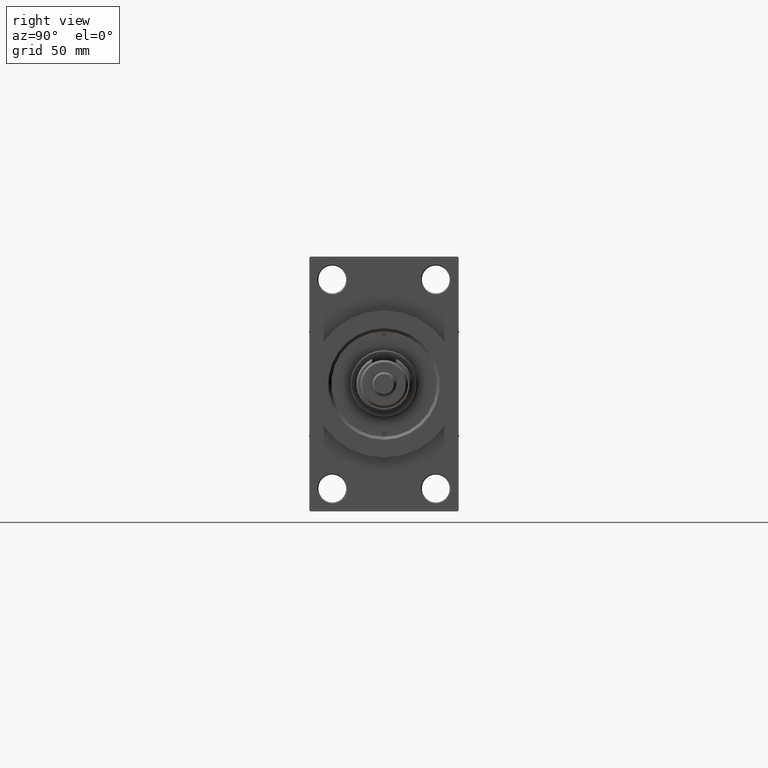
[diagram: clean part render]
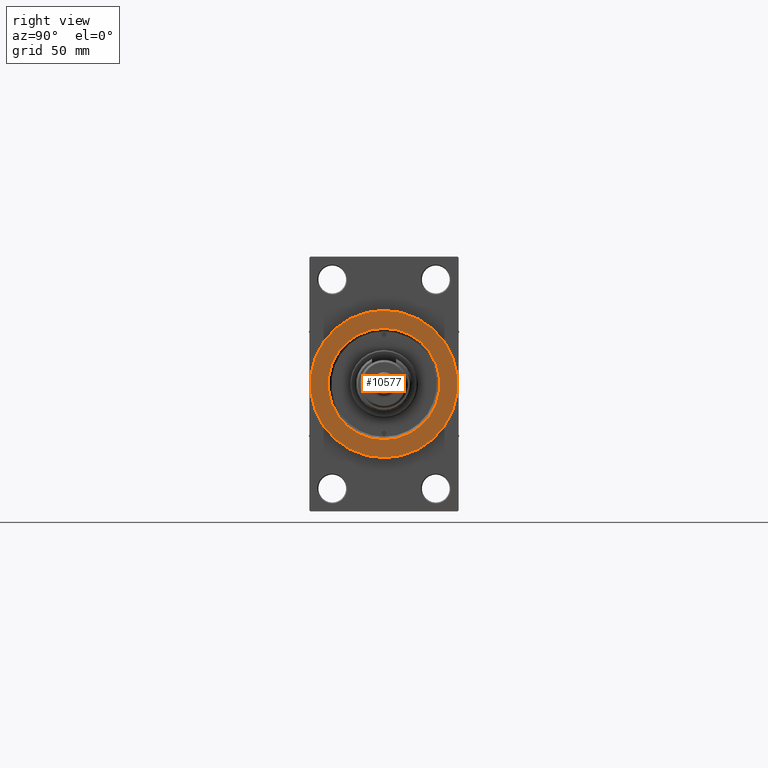
[diagram: same view with one face highlighted and labeled with its STEP entity id]
A machine part, right view. The second image highlights one B-rep face of the part: STEP entity #10577.
In plain terms, the highlighted planar face has unit normal (1, 0, 0).
Its self-contained STEP definition (entity closure, byte-faithful):
#441 = CARTESIAN_POINT ( 'NONE',  ( 234.0000000000000284, 0.000000000000000000, -27.99999999999999645 ) ) ;
#930 = ORIENTED_EDGE ( 'NONE', *, *, #26312, .T. ) ;
#1426 = CARTESIAN_POINT ( 'NONE',  ( 234.0000000000000284, 4.531193156845206793E-15, -37.00000000000000000 ) ) ;
#1684 = EDGE_LOOP ( 'NONE', ( #3302, #27266 ) ) ;
#2166 = DIRECTION ( 'NONE',  ( -1.000000000000000000, -0.000000000000000000, -0.000000000000000000 ) ) ;
#2967 = FACE_OUTER_BOUND ( 'NONE', #1684, .T. ) ;
#3302 = ORIENTED_EDGE ( 'NONE', *, *, #21601, .T. ) ;
#3966 = EDGE_CURVE ( 'NONE', #47359, #30896, #43147, .T. ) ;
#4933 = ORIENTED_EDGE ( 'NONE', *, *, #13520, .T. ) ;
#7042 = DIRECTION ( 'NONE',  ( 0.000000000000000000, 0.000000000000000000, -1.000000000000000000 ) ) ;
#7796 = DIRECTION ( 'NONE',  ( 1.000000000000000000, 0.000000000000000000, 0.000000000000000000 ) ) ;
#8070 = CARTESIAN_POINT ( 'NONE',  ( 234.0000000000000284, 3.429011037612588881E-15, 27.99999999999999645 ) ) ;
#10265 = EDGE_LOOP ( 'NONE', ( #4933, #930 ) ) ;
#10577 = ADVANCED_FACE ( 'NONE', ( #46132, #2967 ), #42335, .T. ) ;
#12597 = AXIS2_PLACEMENT_3D ( 'NONE', #14681, #7796, #7042 ) ;
#13520 = EDGE_CURVE ( 'NONE', #34516, #19857, #42217, .T. ) ;
#14681 = CARTESIAN_POINT ( 'NONE',  ( 234.0000000000000284, 0.000000000000000000, 0.000000000000000000 ) ) ;
#15505 = DIRECTION ( 'NONE',  ( 1.000000000000000000, 0.000000000000000000, 0.000000000000000000 ) ) ;
#19047 = DIRECTION ( 'NONE',  ( 0.000000000000000000, 0.000000000000000000, -1.000000000000000000 ) ) ;
#19672 = AXIS2_PLACEMENT_3D ( 'NONE', #50264, #15505, #43370 ) ;
#19857 = VERTEX_POINT ( 'NONE', #8070 ) ;
#21601 = EDGE_CURVE ( 'NONE', #30896, #47359, #35073, .T. ) ;
#22859 = CARTESIAN_POINT ( 'NONE',  ( 234.0000000000000284, 0.000000000000000000, 0.000000000000000000 ) ) ;
#26312 = EDGE_CURVE ( 'NONE', #19857, #34516, #45882, .T. ) ;
#26909 = DIRECTION ( 'NONE',  ( -1.000000000000000000, -0.000000000000000000, -0.000000000000000000 ) ) ;
#27266 = ORIENTED_EDGE ( 'NONE', *, *, #3966, .T. ) ;
#28062 = AXIS2_PLACEMENT_3D ( 'NONE', #22859, #26909, #19047 ) ;
#30344 = CARTESIAN_POINT ( 'NONE',  ( 234.0000000000000284, 0.000000000000000000, 0.000000000000000000 ) ) ;
#30847 = DIRECTION ( 'NONE',  ( 0.000000000000000000, 0.000000000000000000, -1.000000000000000000 ) ) ;
#30896 = VERTEX_POINT ( 'NONE', #39751 ) ;
#33123 = DIRECTION ( 'NONE',  ( 1.000000000000000000, 0.000000000000000000, 0.000000000000000000 ) ) ;
#34516 = VERTEX_POINT ( 'NONE', #441 ) ;
#35073 = CIRCLE ( 'NONE', #39132, 37.00000000000000000 ) ;
#38964 = AXIS2_PLACEMENT_3D ( 'NONE', #40757, #2166, #44558 ) ;
#39132 = AXIS2_PLACEMENT_3D ( 'NONE', #30344, #33123, #30847 ) ;
#39751 = CARTESIAN_POINT ( 'NONE',  ( 234.0000000000000284, 0.000000000000000000, 37.00000000000000000 ) ) ;
#40757 = CARTESIAN_POINT ( 'NONE',  ( 234.0000000000000284, 0.000000000000000000, 0.000000000000000000 ) ) ;
#42217 = CIRCLE ( 'NONE', #38964, 27.99999999999999645 ) ;
#42335 = PLANE ( 'NONE',  #12597 ) ;
#43147 = CIRCLE ( 'NONE', #19672, 37.00000000000000000 ) ;
#43370 = DIRECTION ( 'NONE',  ( 0.000000000000000000, 0.000000000000000000, -1.000000000000000000 ) ) ;
#44558 = DIRECTION ( 'NONE',  ( 0.000000000000000000, 0.000000000000000000, -1.000000000000000000 ) ) ;
#45882 = CIRCLE ( 'NONE', #28062, 27.99999999999999645 ) ;
#46132 = FACE_BOUND ( 'NONE', #10265, .T. ) ;
#47359 = VERTEX_POINT ( 'NONE', #1426 ) ;
#50264 = CARTESIAN_POINT ( 'NONE',  ( 234.0000000000000284, 0.000000000000000000, 0.000000000000000000 ) ) ;